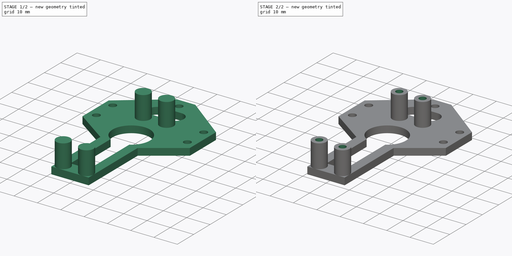
[diagram: build sequence overview — one tinted view per stage of 2, left to right]
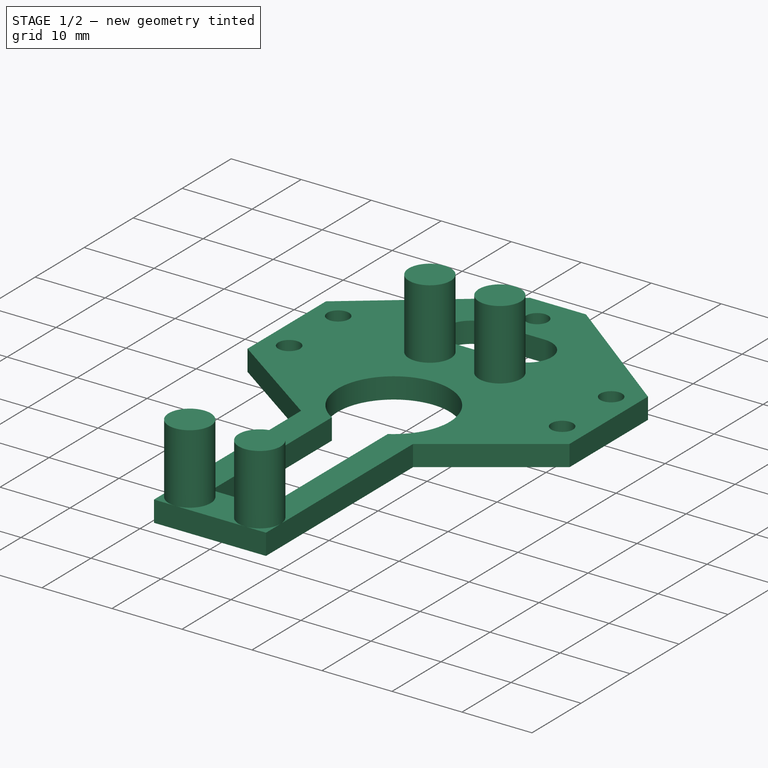
[diagram: stage 1 of 2 — iso view after this stage's code; geometry added in this stage tinted green]
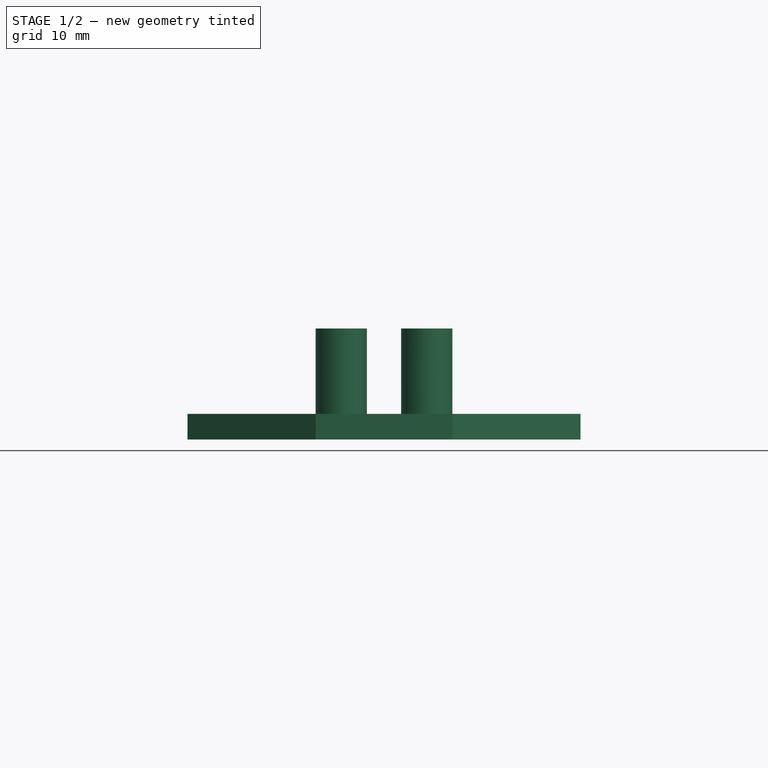
[diagram: stage 1 of 2 — front view after this stage's code; geometry added in this stage tinted green]
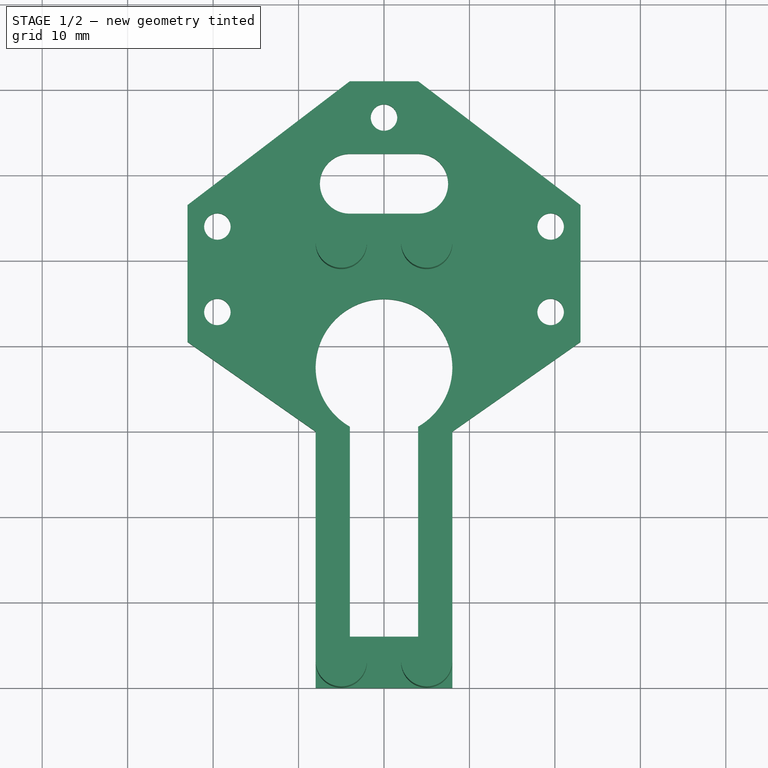
[diagram: stage 1 of 2 — top view after this stage's code; geometry added in this stage tinted green]
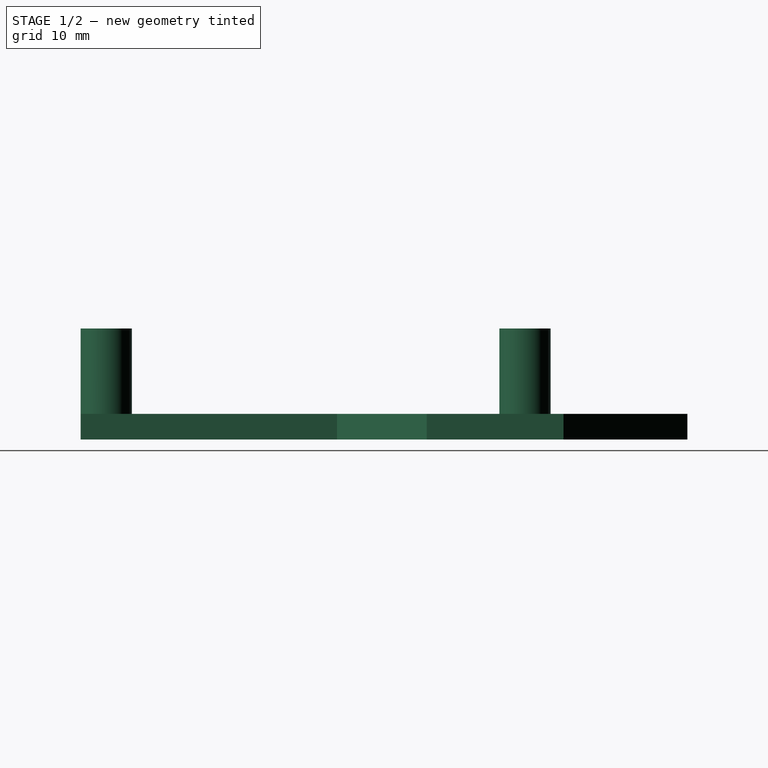
[diagram: stage 1 of 2 — right view after this stage's code; geometry added in this stage tinted green]
FCSTD DOCUMENT  (FreeCAD 0.19R24276 (Git))
Label: part4
License: All rights reserved
LicenseURL: http://en.wikipedia.org/wiki/All_rights_reserved
objects: Sketcher::SketchObject×3, PartDesign::Pad×2, PartDesign::Pocket×1, PartDesign::Body×1
note: 10 computed .brp shape members not serialized (recipe doc carries the construction recipe); baked Part::Feature solids carry a one-line shape summary decoded from their .brp

FEATURE [Sketcher::SketchObject] Sketch
  FullyConstrained = true
  MapMode = 5
  Support = -> [XY_Plane]
  sketch-geometry (23):
    g0: LineSegment StartX=8 StartY=-30 StartZ=0 EndX=-8 EndY=-30 EndZ=0
    g1: LineSegment StartX=-8 StartY=-30 StartZ=0 EndX=-8 EndY=0 EndZ=0
    g2: LineSegment StartX=-8 StartY=0 StartZ=0 EndX=-23 EndY=10.5031 EndZ=0
    g3: LineSegment StartX=-23 StartY=10.5031 StartZ=0 EndX=-23 EndY=26.5031 EndZ=0
    g4: LineSegment StartX=-23 StartY=26.5031 StartZ=0 EndX=-4 EndY=41 EndZ=0
    g5: LineSegment StartX=-4 StartY=41 StartZ=0 EndX=4 EndY=41 EndZ=0
    g6: LineSegment StartX=4 StartY=41 StartZ=0 EndX=23 EndY=26.5031 EndZ=0
    g7: LineSegment StartX=23 StartY=26.5031 StartZ=0 EndX=23 EndY=10.5031 EndZ=0
    g8: LineSegment StartX=23 StartY=10.5031 StartZ=0 EndX=8 EndY=0 EndZ=0
    g9: LineSegment StartX=8 StartY=0 StartZ=0 EndX=8 EndY=-30 EndZ=0
    g10: ArcOfCircle CenterX=-4 CenterY=29 CenterZ=0 NormalX=0 NormalY=0 NormalZ=1 AngleXU=0 Radius=3.5 StartAngle=1.5708 EndAngle=4.71239
    g11: ArcOfCircle CenterX=4 CenterY=29 CenterZ=0 NormalX=0 NormalY=0 NormalZ=1 AngleXU=0 Radius=3.5 StartAngle=4.71239 EndAngle=7.85398
    g12: LineSegment StartX=-4 StartY=25.5 StartZ=0 EndX=4 EndY=25.5 EndZ=0
    g13: LineSegment StartX=-4 StartY=32.5 StartZ=0 EndX=4 EndY=32.5 EndZ=0
    g14: Circle CenterX=0 CenterY=36.75 CenterZ=0 NormalX=0 NormalY=0 NormalZ=1 AngleXU=0 Radius=1.55
    g15: Circle CenterX=19.5 CenterY=24 CenterZ=0 NormalX=0 NormalY=0 NormalZ=1 AngleXU=0 Radius=1.55
    g16: Circle CenterX=19.5 CenterY=14 CenterZ=0 NormalX=0 NormalY=0 NormalZ=1 AngleXU=0 Radius=1.55
    g17: Circle CenterX=-19.5 CenterY=24 CenterZ=0 NormalX=0 NormalY=0 NormalZ=1 AngleXU=0 Radius=1.55
    g18: Circle CenterX=-19.5 CenterY=14 CenterZ=0 NormalX=0 NormalY=0 NormalZ=1 AngleXU=0 Radius=1.55
    g19: ArcOfCircle CenterX=0 CenterY=7.5 CenterZ=0 NormalX=0 NormalY=0 NormalZ=1 AngleXU=0 Radius=8 StartAngle=5.23599 EndAngle=10.472
    g20: LineSegment StartX=4 StartY=0.571797 StartZ=0 EndX=4 EndY=-24 EndZ=0
    g21: LineSegment StartX=4 StartY=-24 StartZ=0 EndX=-4 EndY=-24 EndZ=0
    g22: LineSegment StartX=-4 StartY=-24 StartZ=0 EndX=-4 EndY=0.571797 EndZ=0
  constraints (61):
    c: Horizontal(g0)
    c: Coincident(g0,g1)
    c: Vertical(g1)
    c: Coincident(g1,g2)
    c: Coincident(g2,g3)
    c: Vertical(g3)
    c: Coincident(g3,g4)
    c: Coincident(g4,g5)
    c: Coincident(g5,g6)
    c: Coincident(g6,g7)
    c: Vertical(g7)
    c: Coincident(g7,g8)
    c: Coincident(g8,g9)
    c: Coincident(g9,g0)
    c: Vertical(g9)
    c: DistanceX(g1,g8) = 16
    c: DistanceY(g9,g9) = 30
    c: DistanceX(g5,g5) = 8
    c: Symmetric(g8,g1,g-2)
    c: Symmetric(g5,g4,g-2)
    c: DistanceY(g7,g7) = 16
    c: Equal(g7,g3)
    c: Angle(g2,g-1) = 0.610865
    c: Symmetric(g6,g3,g-2)
    c: DistanceY(g0,g5) = 71
    c: DistanceX(g3,g6) = 46
    c: PointOnObject(g1,g-1)
    c: Tangent(g10,g13) = 1.5708
    c: Tangent(g10,g12) = -1.5708
    c: Tangent(g12,g11) = -1.5708
    c: Tangent(g13,g11) = 1.5708
    c: Horizontal(g12)
    c: PointOnObject(g14,g-2)
    c: PointOnObject(g19,g-2)
    c: Coincident(g20,g21)
    c: Coincident(g21,g22)
    c: Vertical(g20)
    c: Vertical(g22)
    c: Equal(g17,g18)
    c: Equal(g17,g15)
    c: Equal(g17,g16)
    c: Equal(g17,g14)
    c: Diameter(g17) = 3.1
    c: Symmetric(g10,g11,g-2)
    c: DistanceY(g10,g4) = 8.5
    c: DistanceY(g10,g10) = 7
    c: Symmetric(g15,g17,g-2)
    c: Symmetric(g16,g18,g-2)
    c: Diameter(g19) = 16
    c: DistanceX(g20,g8) = 4
    c: DistanceY(g0,g21) = 6
    c: DistanceY(g21,g19) = 31.5
    c: Coincident(g19,g20)
    c: Coincident(g19,g22)
    c: Symmetric(g20,g21,g-2)
    c: DistanceX(g10,g11) = 8
    c: DistanceY(g18,g17) = 10
    c: DistanceX(g18,g16) = 39
    c: DistanceX(g17,g15) = 39
    c: DistanceY(g14,g4) = 4.25
    c: DistanceY(g0,g16) = 44
FEATURE [PartDesign::Pad] Pad
  Direction = (1,1,1)
  Length = 3
  Length2 = 100
  Profile = -> Sketch
  Type = 0
FEATURE [Sketcher::SketchObject] Sketch001
  ExternalGeometry = -> [Pad]
  FullyConstrained = true
  MapMode = 5
  Placement = pos=(0,0,3) rot=(0,0,1;0rad)
  Support = -> [Pad]
  sketch-geometry (6):
    g0: Circle CenterX=-5 CenterY=22 CenterZ=0 NormalX=0 NormalY=0 NormalZ=1 AngleXU=0 Radius=3
    g1: Circle CenterX=5 CenterY=22 CenterZ=0 NormalX=0 NormalY=0 NormalZ=1 AngleXU=0 Radius=3
    g2: Circle CenterX=5 CenterY=-27 CenterZ=0 NormalX=0 NormalY=0 NormalZ=1 AngleXU=0 Radius=3
    g3: Circle CenterX=-5 CenterY=-27 CenterZ=0 NormalX=0 NormalY=0 NormalZ=1 AngleXU=0 Radius=3
    g4: GeomPoint X=-8 Y=-27 Z=0
    g5: GeomPoint X=-5 Y=-30 Z=0
  constraints (14):
    c: Equal(g3,g2)
    c: Equal(g3,g1)
    c: Equal(g3,g0)
    c: Symmetric(g0,g1,g-2)
    c: Symmetric(g3,g2,g-2)
    c: PointOnObject(g4,g3)
    c: PointOnObject(g5,g3)
    c: Diameter(g3) = 6
    c: Vertical(g5,g3)
    c: Horizontal(g3,g4)
    c: PointOnObject(g4,g-3)
    c: PointOnObject(g5,g-4)
    c: DistanceY(g3,g0) = 49
    c: Vertical(g3,g0)
FEATURE [PartDesign::Pad] Pad001
  BaseFeature = -> Pad
  Direction = (1,1,1)
  Length = 10
  Length2 = 100
  Profile = -> Sketch001
  Type = 0
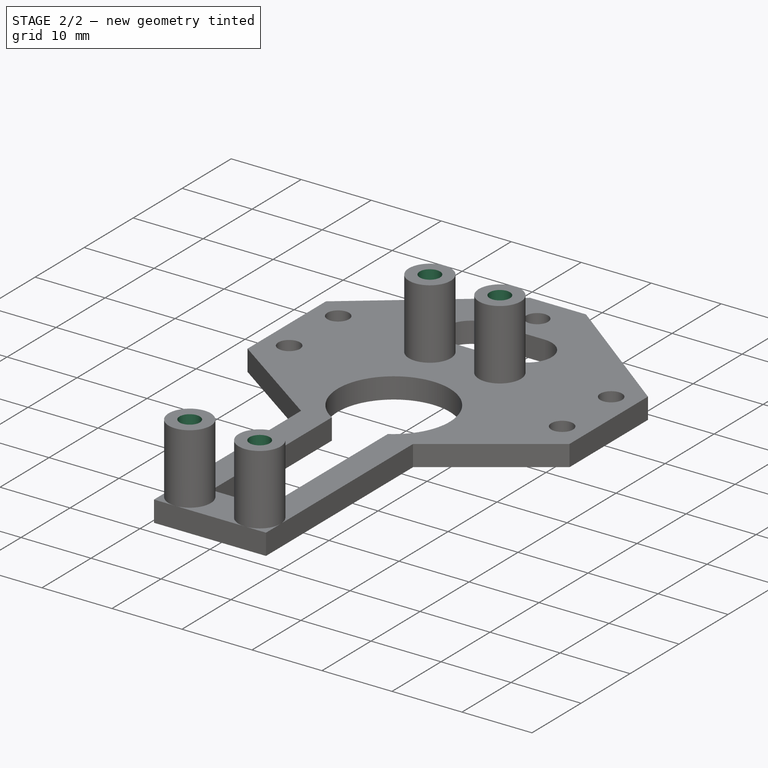
[diagram: stage 2 of 2 — iso view after this stage's code; geometry added in this stage tinted green]
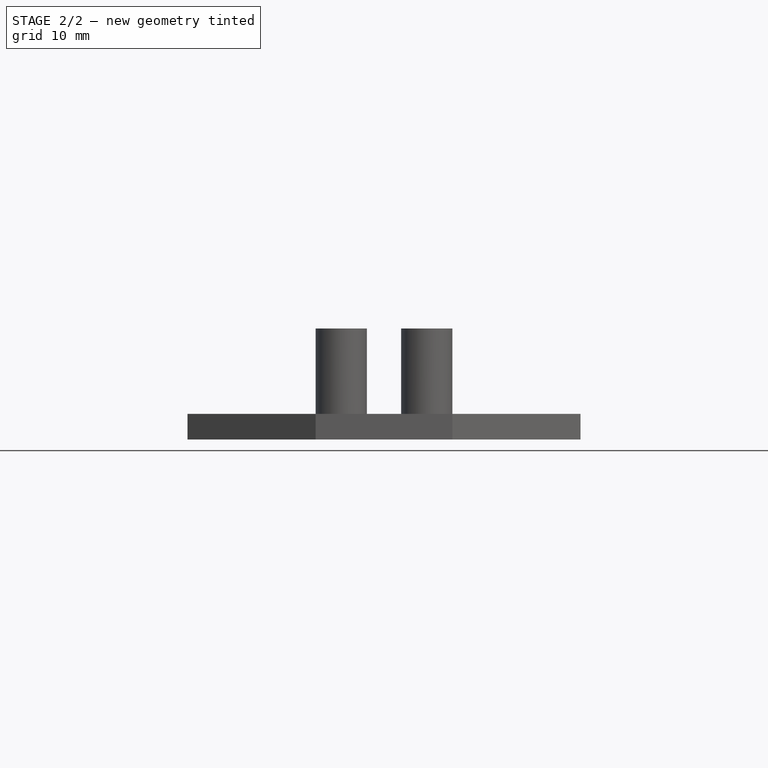
[diagram: stage 2 of 2 — front view after this stage's code; geometry added in this stage tinted green]
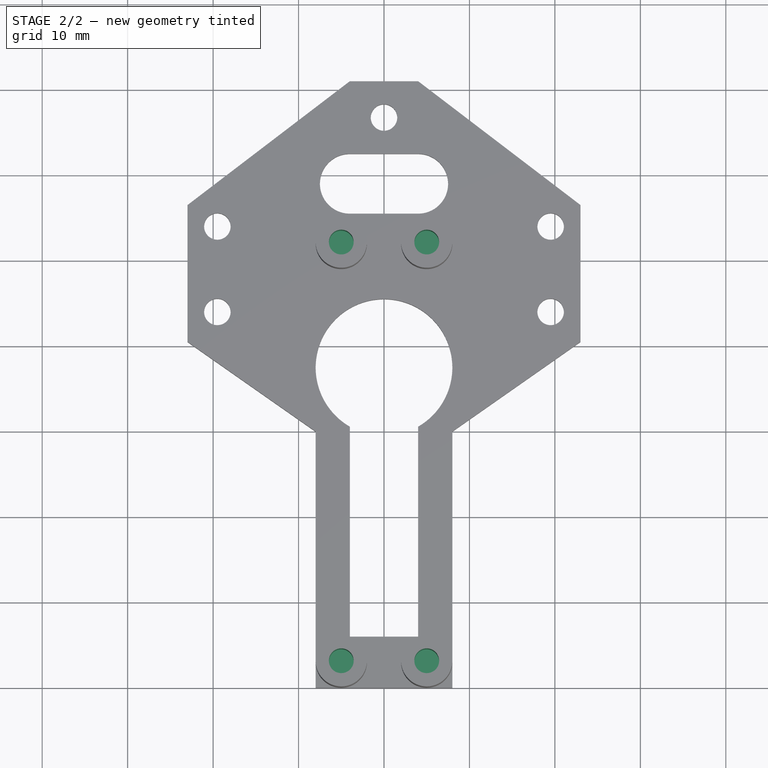
[diagram: stage 2 of 2 — top view after this stage's code; geometry added in this stage tinted green]
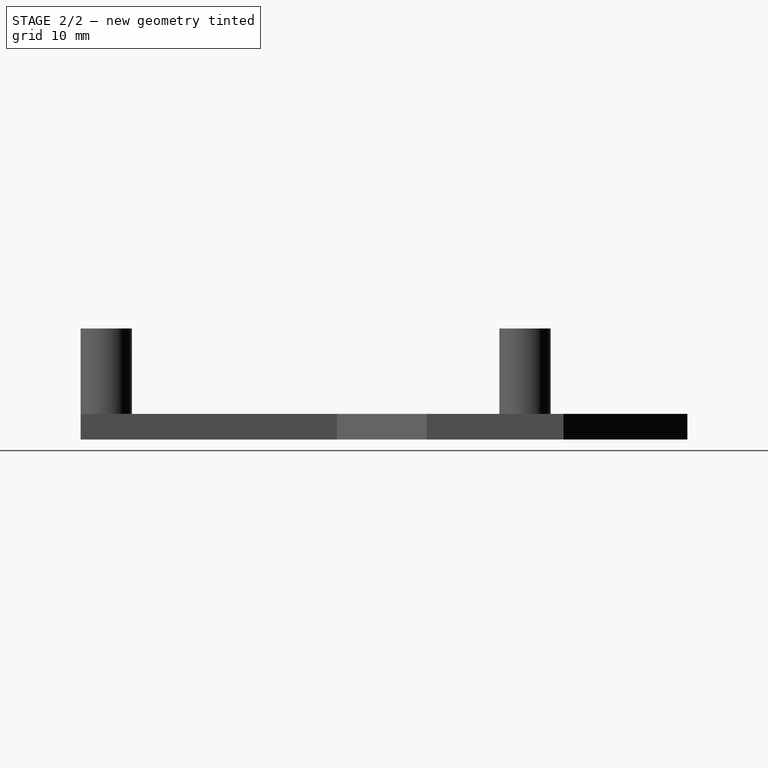
[diagram: stage 2 of 2 — right view after this stage's code; geometry added in this stage tinted green]
FEATURE [Sketcher::SketchObject] Sketch002
  ExternalGeometry = -> [Pad001]
  FullyConstrained = true
  MapMode = 5
  Placement = pos=(0,0,13) rot=(0,0,1;0rad)
  Support = -> [Pad001]
  sketch-geometry (4):
    g0: Circle CenterX=-5 CenterY=22 CenterZ=0 NormalX=0 NormalY=0 NormalZ=1 AngleXU=0 Radius=1.45
    g1: Circle CenterX=5 CenterY=22 CenterZ=0 NormalX=0 NormalY=0 NormalZ=1 AngleXU=0 Radius=1.45
    g2: Circle CenterX=5 CenterY=-27 CenterZ=0 NormalX=0 NormalY=0 NormalZ=1 AngleXU=0 Radius=1.45
    g3: Circle CenterX=-5 CenterY=-27 CenterZ=0 NormalX=0 NormalY=0 NormalZ=1 AngleXU=0 Radius=1.45
  constraints (8):
    c: Coincident(g0,g-4)
    c: Coincident(g1,g-3)
    c: Coincident(g2,g-6)
    c: Coincident(g3,g-5)
    c: Equal(g3,g2)
    c: Equal(g3,g1)
    c: Equal(g3,g0)
    c: Diameter(g3) = 2.9
FEATURE [PartDesign::Pocket] Pocket
  BaseFeature = -> Pad001
  Length = 7
  Length2 = 100
  Profile = -> Sketch002
  Type = 0
FEATURE [PartDesign::Body] Body
  Group = -> [Sketch,Pad,Sketch001,Pad001,Sketch002,Pocket]
  Origin = -> Origin
  Tip = -> Pocket
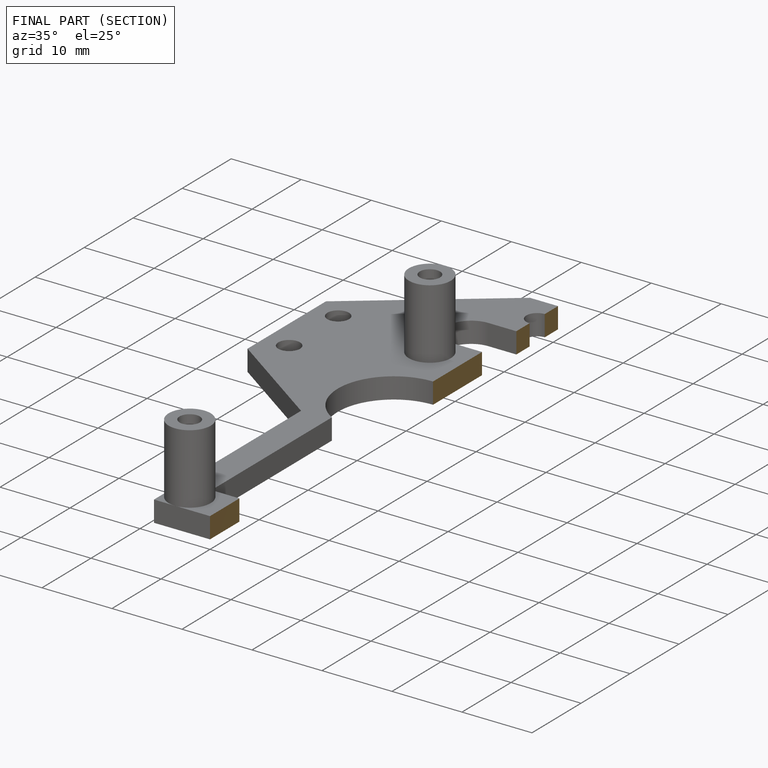
[diagram: finished part — half-section view (interior)]
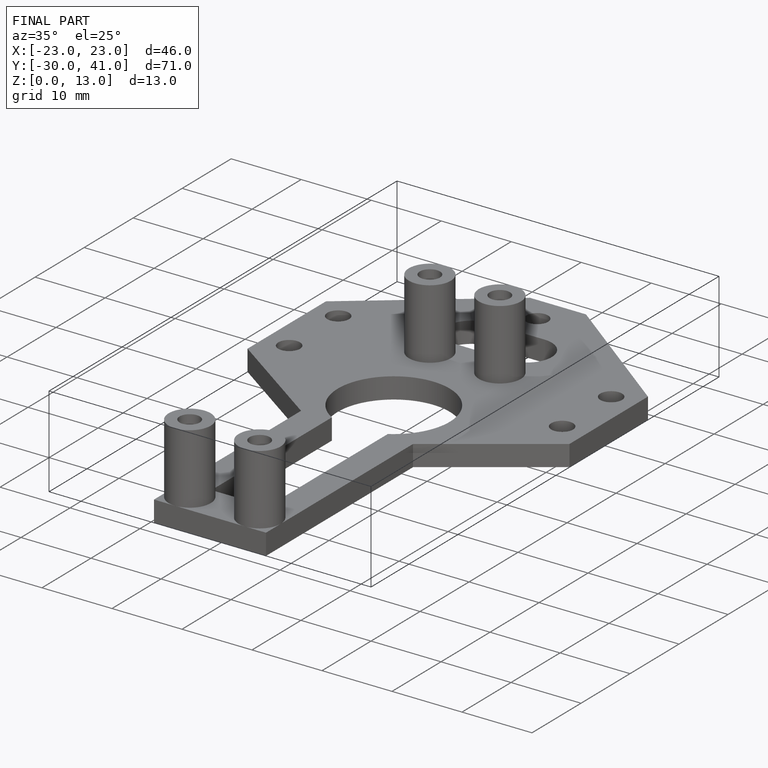
[diagram: finished part — iso view with bounding-box wireframe]
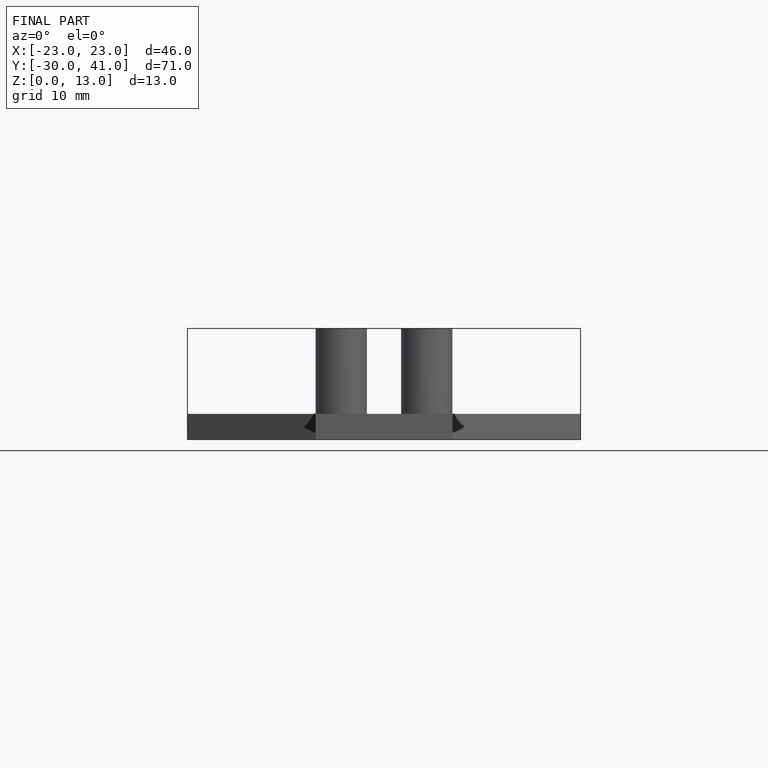
[diagram: finished part — front view with bounding-box wireframe]
